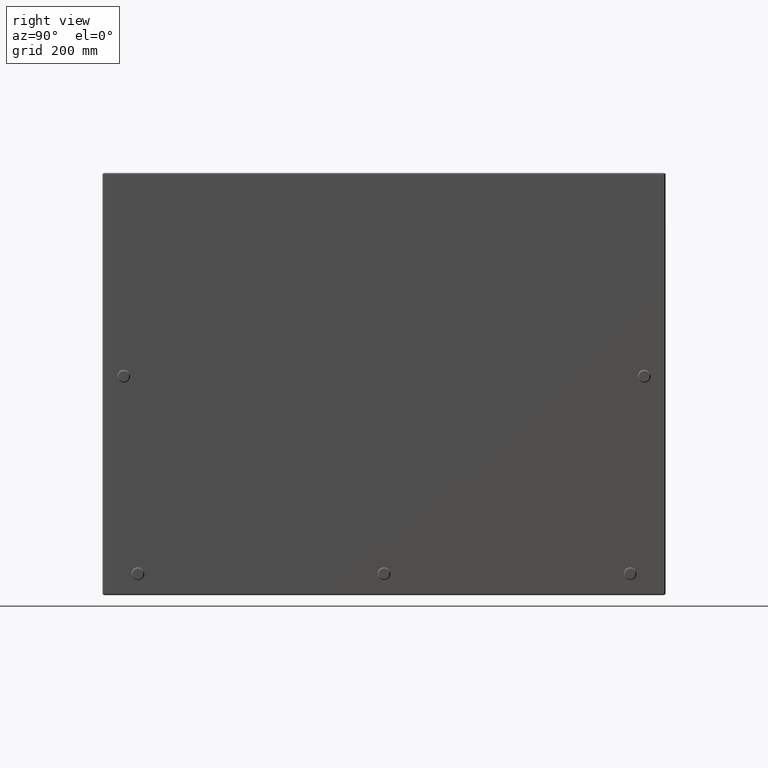
[diagram: clean part render]
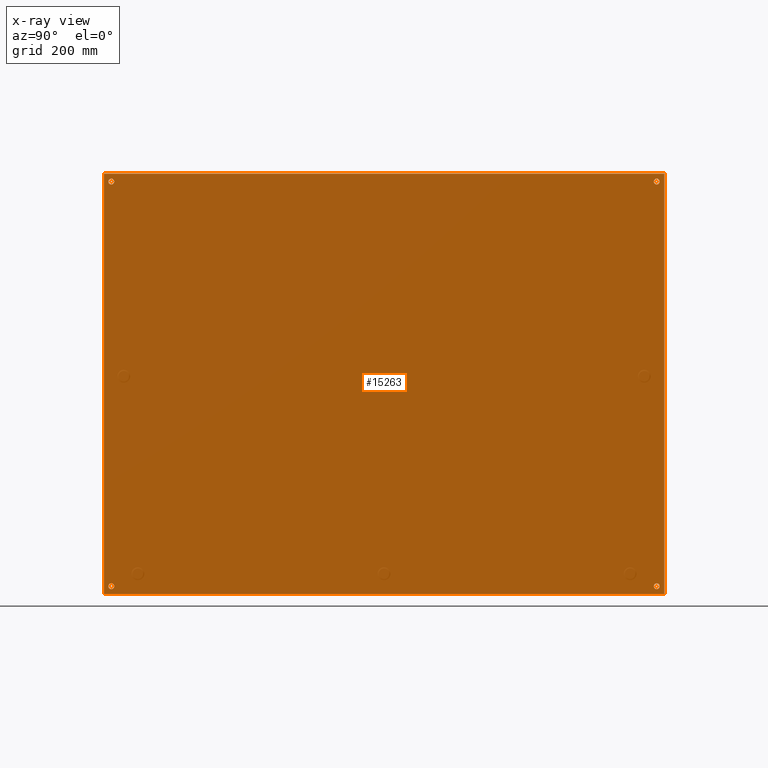
[diagram: x-ray — body ghosted, one internal face saturated and labeled with its STEP entity id]
A machine part, right view, then the same camera in x-ray: the body is ghosted and one INTERNAL B-rep face — a face not visible from any outside direction — is saturated and labeled: STEP entity #15263.
In plain terms, the highlighted planar face has unit normal (-1, -0, -0).
Its self-contained STEP definition (entity closure, byte-faithful):
#79 = VERTEX_POINT ( 'NONE', #35733 ) ;
#1270 = CARTESIAN_POINT ( 'NONE',  ( -17.25000000000003908, -0.07199999999999857903, -23.25000000000000000 ) ) ;
#1768 = CARTESIAN_POINT ( 'NONE',  ( -17.25000000000003908, -0.07199999999999857903, -23.25000000000000000 ) ) ;
#2051 = FACE_OUTER_BOUND ( 'NONE', #82581, .T. ) ;
#2532 = VECTOR ( 'NONE', #53506, 39.37007874015748143 ) ;
#3238 = EDGE_CURVE ( 'NONE', #79465, #52041, #13473, .T. ) ;
#5321 = EDGE_CURVE ( 'NONE', #32360, #72929, #33105, .T. ) ;
#6764 = DIRECTION ( 'NONE',  ( 3.081487911019580102E-33, 1.000000000000000000, 2.465190328815659702E-32 ) ) ;
#8084 = DIRECTION ( 'NONE',  ( -0.0000000000000000000, -1.000000000000000000, -2.465190328815659976E-32 ) ) ;
#8352 = ORIENTED_EDGE ( 'NONE', *, *, #48179, .F. ) ;
#8555 = CARTESIAN_POINT ( 'NONE',  ( 3.639552650810524112E-31, -0.07199999999999842637, 0.0000000000000000000 ) ) ;
#8935 = CARTESIAN_POINT ( 'NONE',  ( -17.25000000000003908, -0.07199999999999857903, 23.25000000000000000 ) ) ;
#10607 = VERTEX_POINT ( 'NONE', #74515 ) ;
#11185 = CARTESIAN_POINT ( 'NONE',  ( -17.92800000000003990, -0.07199999999999842637, -23.89199999999999946 ) ) ;
#11507 = CIRCLE ( 'NONE', #27034, 0.2499999999999986955 ) ;
#11746 = DIRECTION ( 'NONE',  ( 0.0000000000000000000, 0.0000000000000000000, 1.000000000000000000 ) ) ;
#12394 = EDGE_CURVE ( 'NONE', #34644, #82857, #53924, .T. ) ;
#12539 = CARTESIAN_POINT ( 'NONE',  ( 17.92800000000010030, -0.07199999999999842637, 23.89200000000000301 ) ) ;
#13473 = CIRCLE ( 'NONE', #72343, 0.2499999999999986955 ) ;
#13492 = CARTESIAN_POINT ( 'NONE',  ( 17.25000000000003908, -0.07199999999999857903, 23.00000000000000355 ) ) ;
#14675 = CIRCLE ( 'NONE', #46397, 0.2499999999999986955 ) ;
#14833 = DIRECTION ( 'NONE',  ( -0.0000000000000000000, -1.000000000000000000, -2.465190328815659976E-32 ) ) ;
#14869 = AXIS2_PLACEMENT_3D ( 'NONE', #8555, #6764, #55412 ) ;
#15263 = ADVANCED_FACE ( 'NONE', ( #2051, #55561, #17816, #58648, #56570 ), #73513, .F. ) ;
#15673 = DIRECTION ( 'NONE',  ( -0.0000000000000000000, -1.000000000000000000, -2.465190328815659976E-32 ) ) ;
#16134 = DIRECTION ( 'NONE',  ( 0.0000000000000000000, 0.0000000000000000000, 1.000000000000000000 ) ) ;
#16158 = VECTOR ( 'NONE', #61509, 39.37007874015748143 ) ;
#17816 = FACE_BOUND ( 'NONE', #25055, .T. ) ;
#18381 = CARTESIAN_POINT ( 'NONE',  ( 17.25000000000003908, -0.07199999999999857903, -23.25000000000000000 ) ) ;
#19353 = CARTESIAN_POINT ( 'NONE',  ( -17.25000000000003908, -0.07199999999999857903, -23.00000000000000355 ) ) ;
#20029 = DIRECTION ( 'NONE',  ( 0.0000000000000000000, -2.465190328815659702E-32, 1.000000000000000000 ) ) ;
#20099 = CARTESIAN_POINT ( 'NONE',  ( 3.639552650810524112E-31, -0.07199999999999842637, 23.89200000000000301 ) ) ;
#20500 = CARTESIAN_POINT ( 'NONE',  ( 3.639552650810524112E-31, -0.07199999999999842637, -23.89200000000000301 ) ) ;
#21270 = DIRECTION ( 'NONE',  ( 0.0000000000000000000, 0.0000000000000000000, 1.000000000000000000 ) ) ;
#22287 = EDGE_CURVE ( 'NONE', #69722, #10607, #22759, .T. ) ;
#22759 = CIRCLE ( 'NONE', #56342, 0.2499999999999986955 ) ;
#24831 = DIRECTION ( 'NONE',  ( -0.0000000000000000000, -1.000000000000000000, -2.465190328815659976E-32 ) ) ;
#25055 = EDGE_LOOP ( 'NONE', ( #44309, #59720 ) ) ;
#26061 = ORIENTED_EDGE ( 'NONE', *, *, #12394, .F. ) ;
#27034 = AXIS2_PLACEMENT_3D ( 'NONE', #1768, #29384, #16134 ) ;
#27558 = EDGE_CURVE ( 'NONE', #10607, #69722, #68117, .T. ) ;
#28010 = EDGE_LOOP ( 'NONE', ( #39946, #37164 ) ) ;
#29384 = DIRECTION ( 'NONE',  ( -0.0000000000000000000, -1.000000000000000000, -2.465190328815659976E-32 ) ) ;
#31475 = EDGE_CURVE ( 'NONE', #78515, #34644, #46716, .T. ) ;
#32360 = VERTEX_POINT ( 'NONE', #45145 ) ;
#32615 = CARTESIAN_POINT ( 'NONE',  ( 17.25000000000003908, -0.07199999999999857903, 23.25000000000000000 ) ) ;
#33105 = CIRCLE ( 'NONE', #37965, 0.2499999999999986955 ) ;
#33358 = VERTEX_POINT ( 'NONE', #78808 ) ;
#34021 = DIRECTION ( 'NONE',  ( -0.0000000000000000000, 2.465190328815659702E-32, -1.000000000000000000 ) ) ;
#34644 = VERTEX_POINT ( 'NONE', #80777 ) ;
#35733 = CARTESIAN_POINT ( 'NONE',  ( 17.25000000000003908, -0.07199999999999857903, 23.50000000000000000 ) ) ;
#37164 = ORIENTED_EDGE ( 'NONE', *, *, #39717, .F. ) ;
#37965 = AXIS2_PLACEMENT_3D ( 'NONE', #76011, #14833, #21270 ) ;
#39717 = EDGE_CURVE ( 'NONE', #81030, #79, #14675, .T. ) ;
#39946 = ORIENTED_EDGE ( 'NONE', *, *, #70451, .F. ) ;
#40394 = DIRECTION ( 'NONE',  ( 0.0000000000000000000, 0.0000000000000000000, 1.000000000000000000 ) ) ;
#40785 = LINE ( 'NONE', #52995, #71063 ) ;
#42614 = DIRECTION ( 'NONE',  ( -0.0000000000000000000, -1.000000000000000000, -2.465190328815659976E-32 ) ) ;
#42905 = CARTESIAN_POINT ( 'NONE',  ( 17.25000000000003908, -0.07199999999999857903, -23.50000000000000000 ) ) ;
#44131 = CARTESIAN_POINT ( 'NONE',  ( -17.25000000000003908, -0.07199999999999857903, -23.50000000000000000 ) ) ;
#44309 = ORIENTED_EDGE ( 'NONE', *, *, #5321, .F. ) ;
#45145 = CARTESIAN_POINT ( 'NONE',  ( 17.25000000000003908, -0.07199999999999857903, -23.00000000000000355 ) ) ;
#46397 = AXIS2_PLACEMENT_3D ( 'NONE', #32615, #78220, #11746 ) ;
#46716 = LINE ( 'NONE', #47663, #77934 ) ;
#47100 = CIRCLE ( 'NONE', #79499, 0.2499999999999986955 ) ;
#47314 = DIRECTION ( 'NONE',  ( -0.0000000000000000000, -1.000000000000000000, -2.465190328815659976E-32 ) ) ;
#47663 = CARTESIAN_POINT ( 'NONE',  ( -17.92800000000003990, -0.07199999999999842637, 1.361892308367856407E-63 ) ) ;
#47986 = ORIENTED_EDGE ( 'NONE', *, *, #22287, .F. ) ;
#48179 = EDGE_CURVE ( 'NONE', #52041, #79465, #11507, .T. ) ;
#48416 = EDGE_CURVE ( 'NONE', #82857, #33358, #40785, .T. ) ;
#49620 = CIRCLE ( 'NONE', #70128, 0.2499999999999986955 ) ;
#51776 = CARTESIAN_POINT ( 'NONE',  ( -17.25000000000003908, -0.07199999999999857903, 23.00000000000000355 ) ) ;
#52041 = VERTEX_POINT ( 'NONE', #44131 ) ;
#52995 = CARTESIAN_POINT ( 'NONE',  ( 17.92800000000011806, -0.07199999999999842637, -1.361892308367862344E-63 ) ) ;
#53506 = DIRECTION ( 'NONE',  ( 1.000000000000000000, -3.081487911019580102E-33, -7.596454196607838998E-65 ) ) ;
#53515 = ORIENTED_EDGE ( 'NONE', *, *, #67139, .F. ) ;
#53924 = LINE ( 'NONE', #20099, #2532 ) ;
#55412 = DIRECTION ( 'NONE',  ( 0.0000000000000000000, -2.465190328815659702E-32, 1.000000000000000000 ) ) ;
#55561 = FACE_BOUND ( 'NONE', #28010, .T. ) ;
#55718 = ORIENTED_EDGE ( 'NONE', *, *, #3238, .F. ) ;
#55726 = CARTESIAN_POINT ( 'NONE',  ( -17.25000000000003908, -0.07199999999999857903, 23.25000000000000000 ) ) ;
#55887 = ORIENTED_EDGE ( 'NONE', *, *, #27558, .F. ) ;
#56342 = AXIS2_PLACEMENT_3D ( 'NONE', #8935, #15673, #82661 ) ;
#56570 = FACE_BOUND ( 'NONE', #72909, .T. ) ;
#58648 = FACE_BOUND ( 'NONE', #81006, .T. ) ;
#59720 = ORIENTED_EDGE ( 'NONE', *, *, #71937, .F. ) ;
#61509 = DIRECTION ( 'NONE',  ( -1.000000000000000000, 3.081487911019580102E-33, 7.596454196607838998E-65 ) ) ;
#62728 = DIRECTION ( 'NONE',  ( 0.0000000000000000000, 0.0000000000000000000, 1.000000000000000000 ) ) ;
#65257 = ORIENTED_EDGE ( 'NONE', *, *, #31475, .F. ) ;
#67088 = CARTESIAN_POINT ( 'NONE',  ( 17.25000000000003908, -0.07199999999999857903, 23.25000000000000000 ) ) ;
#67139 = EDGE_CURVE ( 'NONE', #33358, #78515, #83155, .T. ) ;
#68117 = CIRCLE ( 'NONE', #82690, 0.2499999999999986955 ) ;
#69722 = VERTEX_POINT ( 'NONE', #51776 ) ;
#70128 = AXIS2_PLACEMENT_3D ( 'NONE', #18381, #24831, #78092 ) ;
#70451 = EDGE_CURVE ( 'NONE', #79, #81030, #47100, .T. ) ;
#71063 = VECTOR ( 'NONE', #34021, 39.37007874015748143 ) ;
#71937 = EDGE_CURVE ( 'NONE', #72929, #32360, #49620, .T. ) ;
#72343 = AXIS2_PLACEMENT_3D ( 'NONE', #1270, #8084, #40394 ) ;
#72699 = DIRECTION ( 'NONE',  ( 0.0000000000000000000, 0.0000000000000000000, 1.000000000000000000 ) ) ;
#72909 = EDGE_LOOP ( 'NONE', ( #55718, #8352 ) ) ;
#72929 = VERTEX_POINT ( 'NONE', #42905 ) ;
#73513 = PLANE ( 'NONE',  #14869 ) ;
#74515 = CARTESIAN_POINT ( 'NONE',  ( -17.25000000000003908, -0.07199999999999857903, 23.50000000000000000 ) ) ;
#75977 = ORIENTED_EDGE ( 'NONE', *, *, #48416, .F. ) ;
#76011 = CARTESIAN_POINT ( 'NONE',  ( 17.25000000000003908, -0.07199999999999857903, -23.25000000000000000 ) ) ;
#77934 = VECTOR ( 'NONE', #20029, 39.37007874015748143 ) ;
#78092 = DIRECTION ( 'NONE',  ( 0.0000000000000000000, 0.0000000000000000000, 1.000000000000000000 ) ) ;
#78220 = DIRECTION ( 'NONE',  ( -0.0000000000000000000, -1.000000000000000000, -2.465190328815659976E-32 ) ) ;
#78515 = VERTEX_POINT ( 'NONE', #11185 ) ;
#78808 = CARTESIAN_POINT ( 'NONE',  ( 17.92800000000003990, -0.07199999999999842637, -23.89200000000000301 ) ) ;
#79465 = VERTEX_POINT ( 'NONE', #19353 ) ;
#79499 = AXIS2_PLACEMENT_3D ( 'NONE', #67088, #47314, #72699 ) ;
#80777 = CARTESIAN_POINT ( 'NONE',  ( -17.92800000000006122, -0.07199999999999842637, 23.89200000000000301 ) ) ;
#81006 = EDGE_LOOP ( 'NONE', ( #55887, #47986 ) ) ;
#81030 = VERTEX_POINT ( 'NONE', #13492 ) ;
#82581 = EDGE_LOOP ( 'NONE', ( #26061, #65257, #53515, #75977 ) ) ;
#82661 = DIRECTION ( 'NONE',  ( 0.0000000000000000000, 0.0000000000000000000, 1.000000000000000000 ) ) ;
#82690 = AXIS2_PLACEMENT_3D ( 'NONE', #55726, #42614, #62728 ) ;
#82857 = VERTEX_POINT ( 'NONE', #12539 ) ;
#83155 = LINE ( 'NONE', #20500, #16158 ) ;